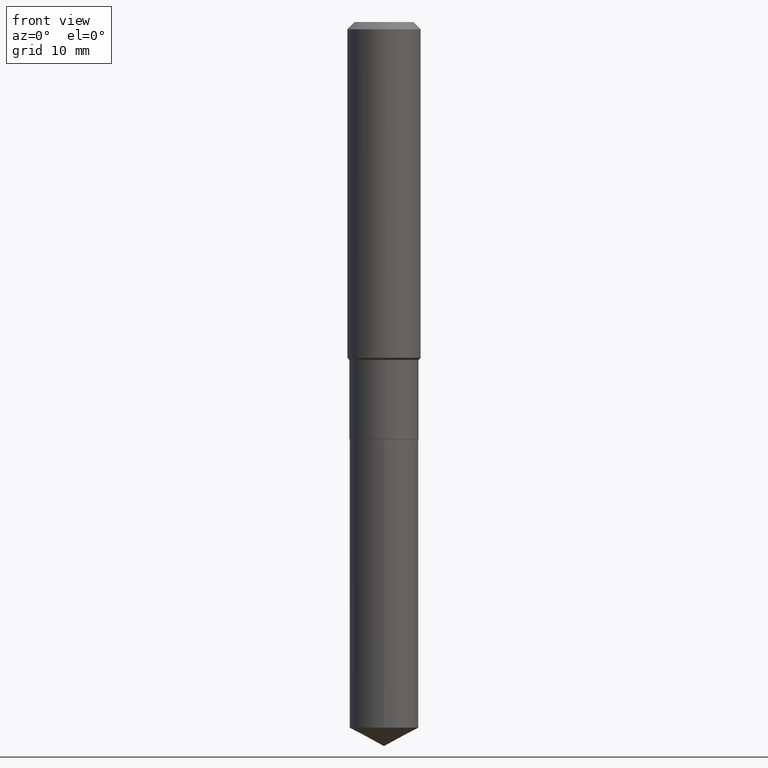
[diagram: clean part render]
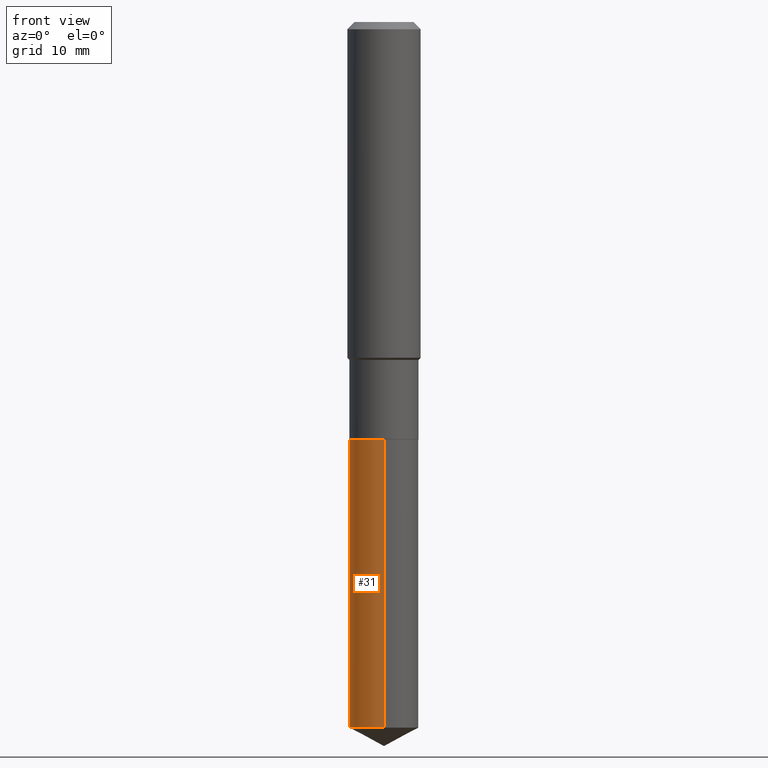
[diagram: same view with one face highlighted and labeled with its STEP entity id]
A machine part, front view. The second image highlights one B-rep face of the part: STEP entity #31.
In plain terms, the highlighted cylindrical surface (edge-blend (fillet) strip) has radius 3.7706 mm, axis along (-0, 0, 1).
Its self-contained STEP definition (entity closure, byte-faithful):
#14 = LINE ( 'NONE', #309, #60 ) ;
#15 = DIRECTION ( 'NONE',  ( -2.445583583356565207E-29, 3.491316971400948587E-15, 1.000000000000000000 ) ) ;
#17 = ORIENTED_EDGE ( 'NONE', *, *, #20, .F. ) ;
#20 = EDGE_CURVE ( 'NONE', #428, #271, #14, .T. ) ;
#25 = DIRECTION ( 'NONE',  ( -6.982962677686265133E-15, -1.000000000000000000, 3.680495781292372402E-15 ) ) ;
#28 = AXIS2_PLACEMENT_3D ( 'NONE', #379, #119, #265 ) ;
#31 = ADVANCED_FACE ( 'NONE', ( #152 ), #92, .T. ) ;
#33 = DIRECTION ( 'NONE',  ( -2.445583583356565207E-29, 3.491316971400948587E-15, 1.000000000000000000 ) ) ;
#36 = EDGE_LOOP ( 'NONE', ( #17, #326, #112, #115 ) ) ;
#60 = VECTOR ( 'NONE', #15, 39.37007874015748143 ) ;
#78 = VERTEX_POINT ( 'NONE', #477 ) ;
#92 = CYLINDRICAL_SURFACE ( 'NONE', #483, 0.1484499999999999986 ) ;
#99 = CARTESIAN_POINT ( 'NONE',  ( 7.412523731404263380E-29, -1.058271288573057889E-14, -3.031067734869853592 ) ) ;
#101 = CIRCLE ( 'NONE', #28, 0.1484499999999999986 ) ;
#105 = DIRECTION ( 'NONE',  ( -2.445583583356565487E-29, 3.491316971400948587E-15, 1.000000000000000000 ) ) ;
#112 = ORIENTED_EDGE ( 'NONE', *, *, #451, .T. ) ;
#115 = ORIENTED_EDGE ( 'NONE', *, *, #197, .F. ) ;
#119 = DIRECTION ( 'NONE',  ( -2.445583583356565487E-29, 3.491316971400948587E-15, 1.000000000000000000 ) ) ;
#126 = CARTESIAN_POINT ( 'NONE',  ( 4.383991928848093439E-29, -6.259178596144105809E-15, -1.792699999999999738 ) ) ;
#135 = VERTEX_POINT ( 'NONE', #196 ) ;
#138 = LINE ( 'NONE', #257, #273 ) ;
#152 = FACE_OUTER_BOUND ( 'NONE', #36, .T. ) ;
#186 = CIRCLE ( 'NONE', #386, 0.1484499999999999986 ) ;
#196 = CARTESIAN_POINT ( 'NONE',  ( -1.036620809502482311E-15, -0.1484500000000062436, -1.792699999999999072 ) ) ;
#197 = EDGE_CURVE ( 'NONE', #271, #135, #101, .T. ) ;
#200 = DIRECTION ( 'NONE',  ( -6.982962677686265133E-15, -1.000000000000000000, 3.680495781292372402E-15 ) ) ;
#257 = CARTESIAN_POINT ( 'NONE',  ( -1.036620809502482311E-15, -0.1484500000000062436, -1.792699999999999072 ) ) ;
#265 = DIRECTION ( 'NONE',  ( -6.982962677686265133E-15, -1.000000000000000000, 3.680495781292372402E-15 ) ) ;
#271 = VERTEX_POINT ( 'NONE', #443 ) ;
#273 = VECTOR ( 'NONE', #33, 39.37007874015748143 ) ;
#274 = DIRECTION ( 'NONE',  ( -2.445583583356565487E-29, 3.491316971400948587E-15, 1.000000000000000000 ) ) ;
#277 = EDGE_CURVE ( 'NONE', #428, #78, #186, .T. ) ;
#309 = CARTESIAN_POINT ( 'NONE',  ( 1.054800691235912301E-15, 0.1484499999999937259, -1.792700000000000182 ) ) ;
#326 = ORIENTED_EDGE ( 'NONE', *, *, #277, .T. ) ;
#379 = CARTESIAN_POINT ( 'NONE',  ( 4.383991928848093439E-29, -6.259178596144105809E-15, -1.792699999999999738 ) ) ;
#386 = AXIS2_PLACEMENT_3D ( 'NONE', #99, #105, #200 ) ;
#418 = CARTESIAN_POINT ( 'NONE',  ( 1.054800691235942475E-15, 0.1484499999999893960, -3.031067734869854480 ) ) ;
#428 = VERTEX_POINT ( 'NONE', #418 ) ;
#443 = CARTESIAN_POINT ( 'NONE',  ( 1.054800691235942869E-15, 0.1484499999999937259, -1.792700000000000182 ) ) ;
#451 = EDGE_CURVE ( 'NONE', #78, #135, #138, .T. ) ;
#477 = CARTESIAN_POINT ( 'NONE',  ( -1.036620809502451743E-15, -0.1484500000000105457, -3.031067734869853147 ) ) ;
#483 = AXIS2_PLACEMENT_3D ( 'NONE', #126, #274, #25 ) ;